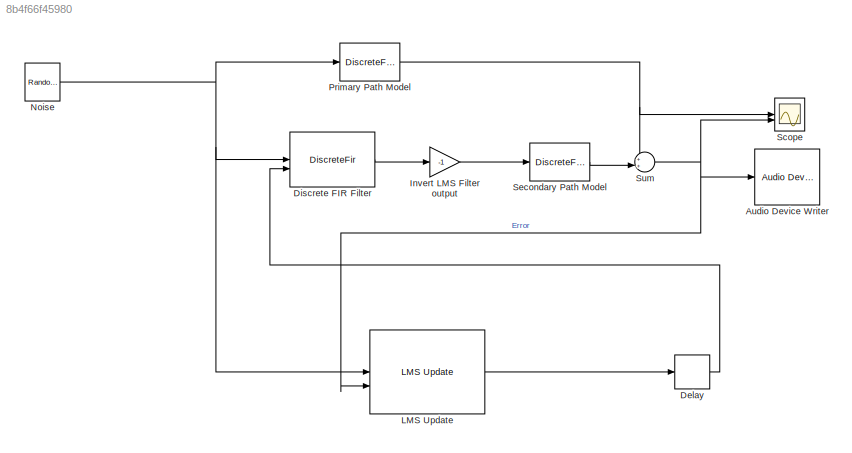
MODEL slx_8b4f66f45980
KIND model
CONFIG AbsTol = auto
CONFIG EnableMultiTasking = off
CONFIG FixedStep = auto
CONFIG MaxStep = auto
CONFIG MinStep = auto
CONFIG RelTol = 1e-3
CONFIG SampleTimeConstraint = Unconstrained
CONFIG SolverName = VariableStepAuto
CONFIG StartTime = 0.0
CONFIG StopTime = 10
WORKSPACE source: mxarray member
WORKSPACE w = [0.5 0.5]
BLOCK [Reference] Audio Device Writer  REF=dspsnks4/Audio Device
Writer
  LibrarySourceBlock = audiosinks/Audio Device\nWriter
  SourceBlock = dspsnks4/Audio Device\nWriter
  SourceType = Audio Device Writer
BLOCK [Delay] Delay
  DelayLength = 1
  InputPortMap = u0
BLOCK [DiscreteFir] Discrete FIR Filter
  CoefSource = Input port
  InputPortMap = u0,u1
  OutputPortMap = o0
BLOCK [Gain] Invert LMS Filter output
  Gain = -1
BLOCK [Reference] LMS Update  REF=dspadpt3/LMS Update
  SourceBlock = dspadpt3/LMS Update
  SourceType = dsp.simulink.LMSUpdate
BLOCK [Reference] Noise  REF=dspsrcs4/Random
Source
  NameLocation = top
  SourceBlock = dspsrcs4/Random\nSource
  SourceType = Random Source
BLOCK [DiscreteFir] Primary Path Model
  InputPortMap = u0
  OutputPortMap = o0
BLOCK [Scope] Scope
  Floating = off
  NumInputPorts = 2
  ScopeSpecificationString = Simulink.scopes.TimeScopeBlockCfg('CurrentConfiguration', extmgr.ConfigurationSet(extmgr.Configuration('Core','General UI',true),extmgr.Configuration('Core','Source UI',true),extmgr.Configuration('Sources','WiredSimulink',true),extmgr.Configuration('Visuals','Time Domain',true,'SerializedDisplays',{struct('MinYLimReal','-1.81232','MaxYLimReal','1.71723','YLabelReal','','MinYLimMag','0.00000','MaxY...<+1421ch>
BLOCK [DiscreteFir] Secondary Path Model
  InputPortMap = u0
  OutputPortMap = o0
BLOCK [Sum] Sum
  Inputs = ++|
LINE Delay:1 -> Discrete FIR Filter:2
LINE Discrete FIR Filter:1 -> Invert LMS Filter output:1
LINE Invert LMS Filter output:1 -> Secondary Path Model:1
LINE LMS Update:1 -> Delay:1
NET Noise:1 -> Discrete FIR Filter:1, LMS Update:1, Primary Path Model:1
NET Primary Path Model:1 -> Scope:1, Sum:1
LINE Secondary Path Model:1 -> Sum:2
NET Sum:1 -> Audio Device Writer:1, LMS Update:2, Scope:2
note: NET lines group one-source signal fan-out (src -> all destinations, sorted); 1:1 wires keep LINE
